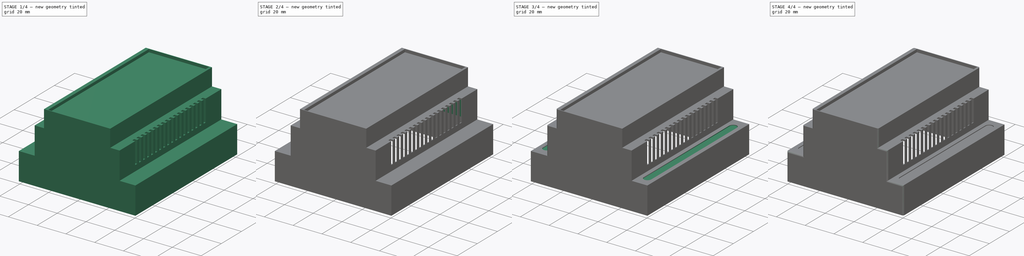
[diagram: build sequence overview — one tinted view per stage of 4, left to right]
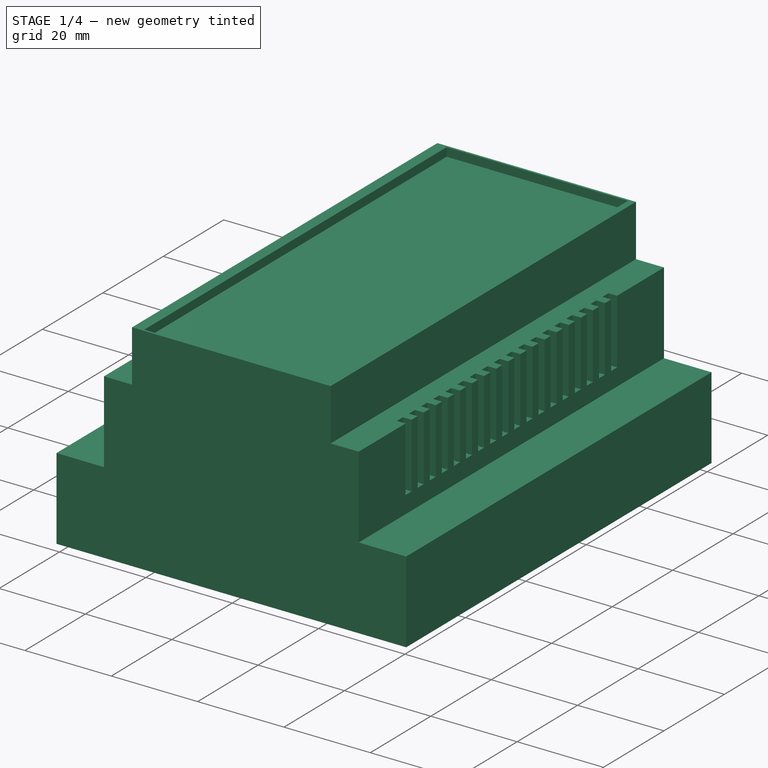
[diagram: stage 1 of 4 — iso view after this stage's code; geometry added in this stage tinted green]
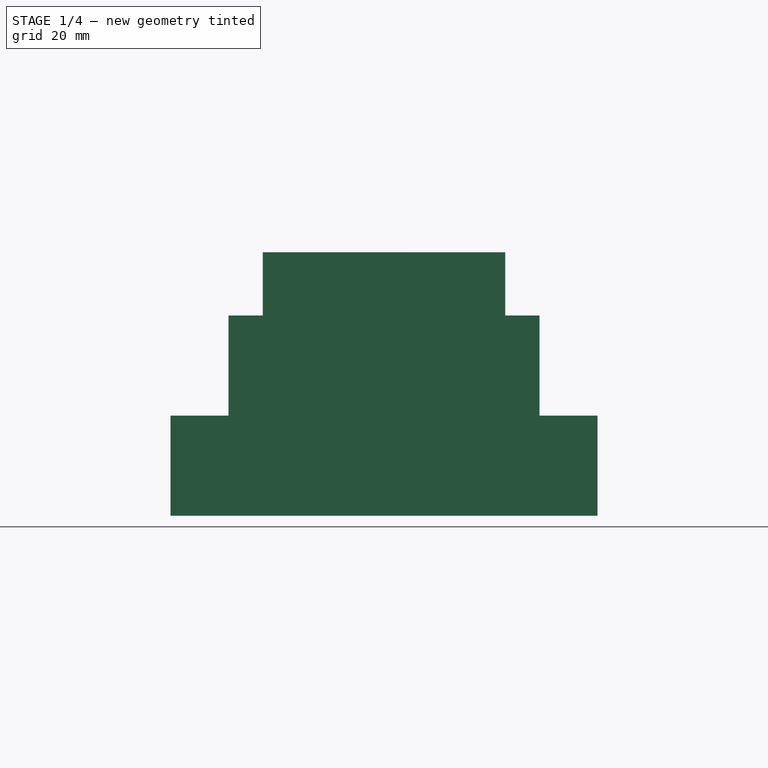
[diagram: stage 1 of 4 — front view after this stage's code; geometry added in this stage tinted green]
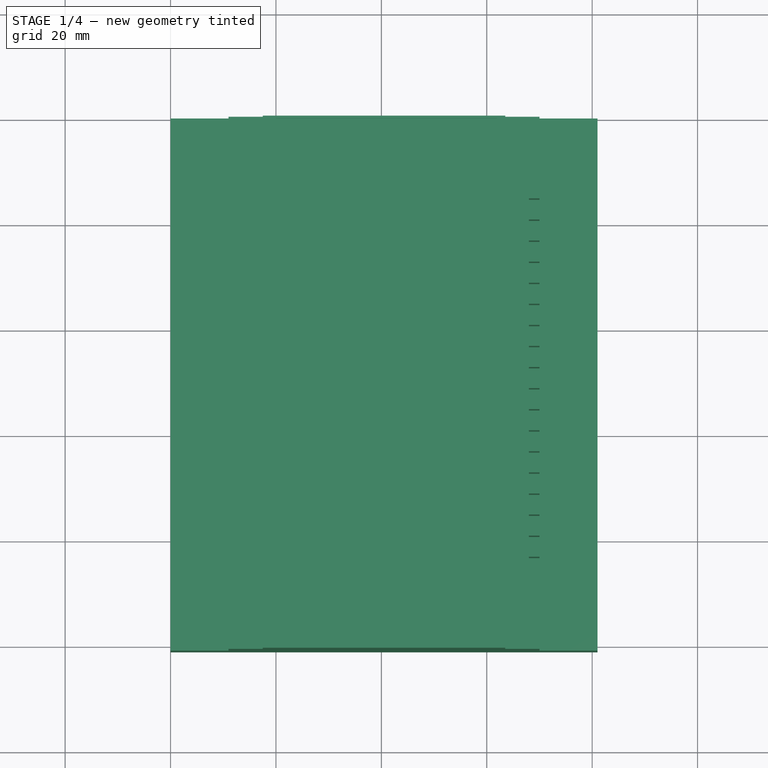
[diagram: stage 1 of 4 — top view after this stage's code; geometry added in this stage tinted green]
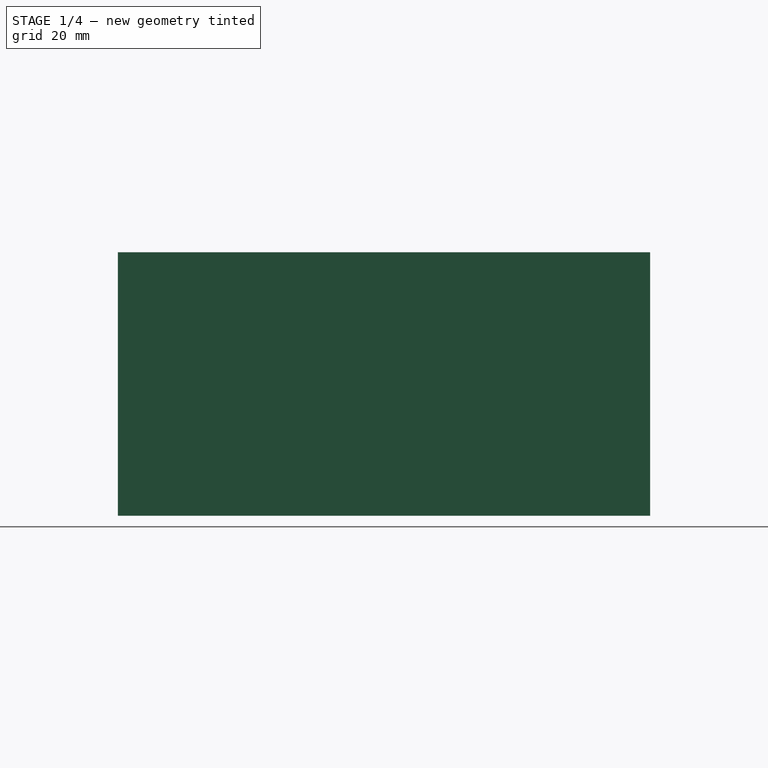
[diagram: stage 1 of 4 — right view after this stage's code; geometry added in this stage tinted green]
FCSTD DOCUMENT  (FreeCAD 1.0R39109 (Git))
Label: parte de arriba
License: All rights reserved
LicenseURL: https://en.wikipedia.org/wiki/All_rights_reserved
objects: Sketcher::SketchObject×9, PartDesign::Pocket×7, PartDesign::Fillet×6, PartDesign::Pad×1, PartDesign::Body×1
note: 61 computed .brp shape members not serialized (recipe doc carries the construction recipe); baked Part::Feature solids carry a one-line shape summary decoded from their .brp

FEATURE [Sketcher::SketchObject] Sketch
  ArcFitTolerance = 1e-06
  AttachmentSupport = -> [XZ_Plane]
  FullyConstrained = true
  MakeInternals = false
  MapMode = 5
  Placement = pos=(0,0,0) rot=(1,0,0;1.5708rad)
  sketch-geometry (12):
    g0: LineSegment StartX=0 StartY=0 StartZ=0 EndX=0 EndY=19 EndZ=0
    g1: LineSegment StartX=0 StartY=19 StartZ=0 EndX=11 EndY=19 EndZ=0
    g2: LineSegment StartX=11 StartY=19 StartZ=0 EndX=11 EndY=38 EndZ=0
    g3: LineSegment StartX=11 StartY=38 StartZ=0 EndX=17.5 EndY=38 EndZ=0
    g4: LineSegment StartX=17.5 StartY=38 StartZ=0 EndX=17.5 EndY=50 EndZ=0
    g5: LineSegment StartX=17.5 StartY=50 StartZ=0 EndX=63.5 EndY=50 EndZ=0
    g6: LineSegment StartX=63.5 StartY=50 StartZ=0 EndX=63.5 EndY=38 EndZ=0
    g7: LineSegment StartX=63.5 StartY=38 StartZ=0 EndX=70 EndY=38 EndZ=0
    g8: LineSegment StartX=70 StartY=38 StartZ=0 EndX=70 EndY=19 EndZ=0
    g9: LineSegment StartX=70 StartY=19 StartZ=0 EndX=81 EndY=19 EndZ=0
    g10: LineSegment StartX=81 StartY=19 StartZ=0 EndX=81 EndY=0 EndZ=0
    g11: LineSegment StartX=0 StartY=0 StartZ=0 EndX=81 EndY=0 EndZ=0
  constraints (36):
    c: Coincident(g0,g-1)
    c: PointOnObject(g0,g-2)
    c: Coincident(g1,g0)
    c: Horizontal(g1)
    c: Coincident(g2,g1)
    c: Vertical(g2)
    c: Coincident(g3,g2)
    c: Horizontal(g3)
    c: Coincident(g4,g3)
    c: Vertical(g4)
    c: Coincident(g5,g4)
    c: Horizontal(g5)
    c: Coincident(g6,g5)
    c: Vertical(g6)
    c: Coincident(g7,g6)
    c: Horizontal(g7)
    c: Coincident(g8,g7)
    c: Vertical(g8)
    c: Coincident(g9,g8)
    c: Horizontal(g9)
    c: PointOnObject(g10,g-1)
    c: Vertical(g10)
    c: Coincident(g11,g0)
    c: Coincident(g11,g10)
    c: Equal(g10,g0)
    c: Equal(g8,g2)
    c: Equal(g4,g6)
    c: DistanceX(g11,g11) = 81
    c: DistanceY(g4,g4) = 12
    c: DistanceY(g2,g2) = 19
    c: DistanceY(g0,g4) = 50
    c: DistanceX(g2,g7) = 59
    c: DistanceX(g4,g5) = 46
    c: Equal(g1,g9)
    c: Equal(g7,g3)
    c: Distance(g0,g9) = 81
FEATURE [PartDesign::Pad] Pad
  Direction = (0,-1,2e-16)
  Length = 101
  Length2 = 10
  Placement = pos=(0,0,0) rot=(1,0,0;1.5708rad)
  Profile = -> Sketch
  ReferenceAxis = -> Sketch [N_Axis]
  Refine = true
  Suppressed = false
  Type = 0
FEATURE [Sketcher::SketchObject] Sketch001
  ArcFitTolerance = 1e-06
  AttachmentSupport = -> [Pad]
  ExternalGeometry = -> [Pad]
  FullyConstrained = true
  MakeInternals = false
  MapMode = 5
  Placement = pos=(0,2.2e-14,50) rot=(0,0,1;3.14159rad)
  sketch-geometry (4):
    g0: LineSegment StartX=-62 StartY=100.5 StartZ=0 EndX=-62 EndY=0.5 EndZ=0
    g1: LineSegment StartX=-62 StartY=0.5 StartZ=0 EndX=-20 EndY=0.5 EndZ=0
    g2: LineSegment StartX=-20 StartY=0.5 StartZ=0 EndX=-20 EndY=100.5 EndZ=0
    g3: LineSegment StartX=-20 StartY=100.5 StartZ=0 EndX=-62 EndY=100.5 EndZ=0
  constraints (12):
    c: Coincident(g0,g1)
    c: Coincident(g1,g2)
    c: Coincident(g2,g3)
    c: Coincident(g3,g0)
    c: Vertical(g0)
    c: Vertical(g2)
    c: Horizontal(g1)
    c: Horizontal(g3)
    c: DistanceX(g3,g3) = 42
    c: Distance(g-5,g0) = 1.5
    c: DistanceY(g2,g2) = 100
    c: Distance(g-6,g3) = 0.5
FEATURE [PartDesign::Pocket] Pocket
  BaseFeature = -> Pad
  Direction = (0,0,-1)
  Length = 2
  Length2 = 5
  Placement = pos=(0,0,0) rot=(1,0,0;1.5708rad)
  Profile = -> Sketch001
  ReferenceAxis = -> Sketch001 [N_Axis]
  Refine = true
  Suppressed = false
  Type = 0
FEATURE [Sketcher::SketchObject] Sketch002
  ArcFitTolerance = 1e-06
  AttachmentSupport = -> [Pocket]
  ExternalGeometry = -> [Pocket]
  FullyConstrained = true
  MakeInternals = false
  MapMode = 5
  Placement = pos=(70,0,0) rot=(0.707107,0,0.707107;3.14159rad)
  sketch-geometry (72):
    g0: LineSegment StartX=38 StartY=83.5 StartZ=0 EndX=38 EndY=85.5 EndZ=0
    g1: LineSegment StartX=38 StartY=85.5 StartZ=0 EndX=23 EndY=85.5 EndZ=0
    g2: LineSegment StartX=23 StartY=85.5 StartZ=0 EndX=23 EndY=83.5 EndZ=0
    g3: LineSegment StartX=23 StartY=83.5 StartZ=0 EndX=38 EndY=83.5 EndZ=0
    g4: LineSegment StartX=38 StartY=81.5 StartZ=0 EndX=23 EndY=81.5 EndZ=0
    g5: LineSegment StartX=23 StartY=81.5 StartZ=0 EndX=23 EndY=79.5 EndZ=0
    g6: LineSegment StartX=23 StartY=79.5 StartZ=0 EndX=38 EndY=79.5 EndZ=0
    g7: LineSegment StartX=38 StartY=79.5 StartZ=0 EndX=38 EndY=81.5 EndZ=0
    g8: LineSegment StartX=38 StartY=15.5 StartZ=0 EndX=38 EndY=17.5 EndZ=0
    g9: LineSegment StartX=38 StartY=17.5 StartZ=0 EndX=23 EndY=17.5 EndZ=0
    g10: LineSegment StartX=23 StartY=17.5 StartZ=0 EndX=23 EndY=15.5 EndZ=0
    g11: LineSegment StartX=23 StartY=15.5 StartZ=0 EndX=38 EndY=15.5 EndZ=0
    g12: LineSegment StartX=38 StartY=19.5 StartZ=0 EndX=38 EndY=21.5 EndZ=0
    g13: LineSegment StartX=38 StartY=21.5 StartZ=0 EndX=23 EndY=21.5 EndZ=0
    g14: LineSegment StartX=23 StartY=21.5 StartZ=0 EndX=23 EndY=19.5 EndZ=0
    g15: LineSegment StartX=23 StartY=19.5 StartZ=0 EndX=38 EndY=19.5 EndZ=0
    g16: LineSegment StartX=23 StartY=29.5 StartZ=0 EndX=23 EndY=27.5 EndZ=0
    g17: LineSegment StartX=23 StartY=27.5 StartZ=0 EndX=38 EndY=27.5 EndZ=0
    g18: LineSegment StartX=38 StartY=27.5 StartZ=0 EndX=38 EndY=29.5 EndZ=0
    g19: LineSegment StartX=38 StartY=29.5 StartZ=0 EndX=23 EndY=29.5 EndZ=0
    g20: LineSegment StartX=23 StartY=33.5 StartZ=0 EndX=23 EndY=31.5 EndZ=0
    g21: LineSegment StartX=23 StartY=31.5 StartZ=0 EndX=38 EndY=31.5 EndZ=0
    g22: LineSegment StartX=38 StartY=31.5 StartZ=0 EndX=38 EndY=33.5 EndZ=0
    g23: LineSegment StartX=38 StartY=33.5 StartZ=0 EndX=23 EndY=33.5 EndZ=0
    g24: LineSegment StartX=23 StartY=37.5 StartZ=0 EndX=23 EndY=35.5 EndZ=0
    g25: LineSegment StartX=23 StartY=35.5 StartZ=0 EndX=38 EndY=35.5 EndZ=0
    g26: LineSegment StartX=38 StartY=35.5 StartZ=0 EndX=38 EndY=37.5 EndZ=0
    g27: LineSegment StartX=38 StartY=37.5 StartZ=0 EndX=23 EndY=37.5 EndZ=0
    g28: LineSegment StartX=38 StartY=25.5 StartZ=0 EndX=23 EndY=25.5 EndZ=0
    g29: LineSegment StartX=23 StartY=25.5 StartZ=0 EndX=23 EndY=23.5 EndZ=0
    g30: LineSegment StartX=23 StartY=23.5 StartZ=0 EndX=38 EndY=23.5 EndZ=0
    g31: LineSegment StartX=38 StartY=23.5 StartZ=0 EndX=38 EndY=25.5 EndZ=0
    g32: LineSegment StartX=38 StartY=39.5 StartZ=0 EndX=38 EndY=41.5 EndZ=0
    g33: LineSegment StartX=38 StartY=41.5 StartZ=0 EndX=23 EndY=41.5 EndZ=0
    g34: LineSegment StartX=23 StartY=41.5 StartZ=0 EndX=23 EndY=39.5 EndZ=0
    g35: LineSegment StartX=23 StartY=39.5 StartZ=0 EndX=38 EndY=39.5 EndZ=0
    g36: LineSegment StartX=38 StartY=43.5 StartZ=0 EndX=38 EndY=45.5 EndZ=0
    g37: LineSegment StartX=38 StartY=45.5 StartZ=0 EndX=23 EndY=45.5 EndZ=0
    g38: LineSegment StartX=23 StartY=45.5 StartZ=0 EndX=23 EndY=43.5 EndZ=0
    g39: LineSegment StartX=23 StartY=43.5 StartZ=0 EndX=38 EndY=43.5 EndZ=0
    g40: LineSegment StartX=38 StartY=77.5 StartZ=0 EndX=23 EndY=77.5 EndZ=0
    g41: LineSegment StartX=23 StartY=77.5 StartZ=0 EndX=23 EndY=75.5 EndZ=0
    g42: LineSegment StartX=23 StartY=75.5 StartZ=0 EndX=38 EndY=75.5 EndZ=0
    g43: LineSegment StartX=38 StartY=75.5 StartZ=0 EndX=38 EndY=77.5 EndZ=0
    g44: LineSegment StartX=38 StartY=73.5 StartZ=0 EndX=23 EndY=73.5 EndZ=0
    g45: LineSegment StartX=23 StartY=73.5 StartZ=0 EndX=23 EndY=71.5 EndZ=0
    g46: LineSegment StartX=23 StartY=71.5 StartZ=0 EndX=38 EndY=71.5 EndZ=0
    g47: LineSegment StartX=38 StartY=71.5 StartZ=0 EndX=38 EndY=73.5 EndZ=0
    g48: LineSegment StartX=38 StartY=67.5 StartZ=0 EndX=38 EndY=69.5 EndZ=0
    g49: LineSegment StartX=38 StartY=69.5 StartZ=0 EndX=23 EndY=69.5 EndZ=0
    g50: LineSegment StartX=23 StartY=69.5 StartZ=0 EndX=23 EndY=67.5 EndZ=0
    g51: LineSegment StartX=23 StartY=67.5 StartZ=0 EndX=38 EndY=67.5 EndZ=0
    g52: LineSegment StartX=38 StartY=63.5 StartZ=0 EndX=38 EndY=65.5 EndZ=0
    g53: LineSegment StartX=38 StartY=65.5 StartZ=0 EndX=23 EndY=65.5 EndZ=0
    g54: LineSegment StartX=23 StartY=65.5 StartZ=0 EndX=23 EndY=63.5 EndZ=0
    g55: LineSegment StartX=23 StartY=63.5 StartZ=0 EndX=38 EndY=63.5 EndZ=0
    g56: LineSegment StartX=38 StartY=59.5 StartZ=0 EndX=38 EndY=61.5 EndZ=0
    g57: LineSegment StartX=38 StartY=61.5 StartZ=0 EndX=23 EndY=61.5 EndZ=0
    g58: LineSegment StartX=23 StartY=61.5 StartZ=0 EndX=23 EndY=59.5 EndZ=0
    g59: LineSegment StartX=23 StartY=59.5 StartZ=0 EndX=38 EndY=59.5 EndZ=0
    g60: LineSegment StartX=38 StartY=57.5 StartZ=0 EndX=23 EndY=57.5 EndZ=0
    g61: LineSegment StartX=23 StartY=57.5 StartZ=0 EndX=23 EndY=55.5 EndZ=0
    g62: LineSegment StartX=23 StartY=55.5 StartZ=0 EndX=38 EndY=55.5 EndZ=0
    g63: LineSegment StartX=38 StartY=55.5 StartZ=0 EndX=38 EndY=57.5 EndZ=0
    g64: LineSegment StartX=38 StartY=47.5 StartZ=0 EndX=38 EndY=49.5 EndZ=0
    g65: LineSegment StartX=38 StartY=49.5 StartZ=0 EndX=23 EndY=49.5 EndZ=0
    g66: LineSegment StartX=23 StartY=49.5 StartZ=0 EndX=23 EndY=47.5 EndZ=0
    g67: LineSegment StartX=23 StartY=47.5 StartZ=0 EndX=38 EndY=47.5 EndZ=0
    g68: LineSegment StartX=38 StartY=53.5 StartZ=0 EndX=23 EndY=53.5 EndZ=0
    g69: LineSegment StartX=23 StartY=53.5 StartZ=0 EndX=23 EndY=51.5 EndZ=0
    g70: LineSegment StartX=23 StartY=51.5 StartZ=0 EndX=38 EndY=51.5 EndZ=0
    g71: LineSegment StartX=38 StartY=51.5 StartZ=0 EndX=38 EndY=53.5 EndZ=0
  constraints (216):
    c: Coincident(g0,g1)
    c: Coincident(g1,g2)
    c: Coincident(g2,g3)
    c: Coincident(g3,g0)
    c: Vertical(g0)
    c: Vertical(g2)
    c: Horizontal(g1)
    c: Horizontal(g3)
    c: PointOnObject(g0,g-4)
    c: DistanceX(g1,g1) = 15
    c: DistanceY(g2,g2) = 2
    c: Distance(g-3,g1) = 15.5
    c: Coincident(g4,g5)
    c: Coincident(g5,g6)
    c: Coincident(g6,g7)
    c: Coincident(g7,g4)
    c: Horizontal(g4)
    c: Horizontal(g6)
    c: Vertical(g5)
    c: Vertical(g7)
    c: PointOnObject(g4,g-4)
    c: DistanceY(g5,g5) = 2
    c: Distance(g4,g3) = 2
    c: DistanceX(g6,g6) = 15
    c: Coincident(g8,g9)
    c: Coincident(g9,g10)
    c: Coincident(g10,g11)
    c: Coincident(g11,g8)
    c: Vertical(g8)
    c: Vertical(g10)
    c: Horizontal(g9)
    c: Horizontal(g11)
    c: PointOnObject(g8,g-4)
    c: DistanceY(g10,g10) = 2
    c: DistanceX(g11,g11) = 15
    c: Distance(g-6,g11) = 15.5
    c: Coincident(g12,g13)
    c: Coincident(g13,g14)
    c: Coincident(g14,g15)
    c: Coincident(g15,g12)
    c: Vertical(g12)
    c: Vertical(g14)
    c: Horizontal(g13)
    c: Horizontal(g15)
    c: PointOnObject(g12,g-4)
    c: Distance(g9,g15) = 2
    c: DistanceY(g14,g14) = 2
    c: DistanceX(g13,g13) = 15
    c: Coincident(g16,g17)
    c: Coincident(g17,g18)
    c: Coincident(g18,g19)
    c: Coincident(g19,g16)
    c: Vertical(g16)
    c: Vertical(g18)
    c: Horizontal(g17)
    c: Horizontal(g19)
    c: PointOnObject(g17,g-4)
    c: Coincident(g20,g21)
    c: Coincident(g21,g22)
    c: Coincident(g22,g23)
    c: Coincident(g23,g20)
    c: Vertical(g20)
    c: Vertical(g22)
    c: Horizontal(g21)
    c: Horizontal(g23)
    c: PointOnObject(g21,g-4)
    c: Coincident(g24,g25)
    c: Coincident(g25,g26)
    c: Coincident(g26,g27)
    c: Coincident(g27,g24)
    c: Vertical(g24)
    c: Vertical(g26)
    c: Horizontal(g25)
    c: Horizontal(g27)
    c: PointOnObject(g25,g-4)
    c: Equal(g20,g24)
    c: DistanceY(g24,g24) = 2
    c: DistanceX(g25,g25) = 15
    c: Equal(g25,g23)
    c: Equal(g19,g21)
    c: Distance(g21,g19) = 2
    c: Distance(g23,g25) = 2
    c: Coincident(g28,g29)
    c: Coincident(g29,g30)
    c: Coincident(g30,g31)
    c: Coincident(g31,g28)
    c: Horizontal(g28)
    c: Horizontal(g30)
    c: Vertical(g29)
    c: Vertical(g31)
    c: PointOnObject(g28,g-4)
    c: DistanceX(g28,g28) = 15
    c: DistanceY(g29,g29) = 2
    c: Distance(g30,g13) = 2
    c: DistanceY(g16,g16) = 2
    c: Distance(g17,g28) = 2
    c: Coincident(g32,g33)
    c: Coincident(g33,g34)
    c: Coincident(g34,g35)
    c: Coincident(g35,g32)
    c: Vertical(g32)
    c: Vertical(g34)
    c: Horizontal(g33)
    c: Horizontal(g35)
    c: PointOnObject(g32,g-4)
    c: DistanceY(g34,g34) = 2
    c: Distance(g27,g35) = 2
    c: DistanceX(g33,g33) = 15
    c: Coincident(g36,g37)
    c: Coincident(g37,g38)
    c: Coincident(g38,g39)
    c: Coincident(g39,g36)
    c: Vertical(g36)
    c: Vertical(g38)
    c: Horizontal(g37)
    c: Horizontal(g39)
    c: PointOnObject(g36,g-4)
    c: DistanceY(g38,g38) = 2
    c: DistanceX(g37,g37) = 15
    c: Distance(g33,g39) = 2
    c: Coincident(g40,g41)
    c: Coincident(g41,g42)
    c: Coincident(g42,g43)
    c: Coincident(g43,g40)
    c: Horizontal(g40)
    c: Horizontal(g42)
    c: Vertical(g41)
    c: Vertical(g43)
    c: PointOnObject(g40,g-4)
    c: DistanceX(g42,g42) = 15
    c: Distance(g6,g40) = 2
    c: DistanceY(g41,g41) = 2
    c: Coincident(g44,g45)
    c: Coincident(g45,g46)
    c: Coincident(g46,g47)
    c: Coincident(g47,g44)
    c: Horizontal(g44)
    c: Horizontal(g46)
    c: Vertical(g45)
    c: Vertical(g47)
    c: PointOnObject(g44,g-4)
    c: DistanceX(g46,g46) = 15
    c: Distance(g42,g44) = 2
    c: DistanceY(g45,g45) = 2
    c: Coincident(g48,g49)
    c: Coincident(g49,g50)
    c: Coincident(g50,g51)
    c: Coincident(g51,g48)
    c: Vertical(g48)
    c: Vertical(g50)
    c: Horizontal(g49)
    c: Horizontal(g51)
    c: PointOnObject(g48,g-4)
    c: DistanceY(g50,g50) = 2
    c: Distance(g46,g49) = 2
    c: DistanceX(g51,g51) = 15
    c: Coincident(g52,g53)
    c: Coincident(g53,g54)
    c: Coincident(g54,g55)
    c: Coincident(g55,g52)
    c: Vertical(g52)
    c: Vertical(g54)
    c: Horizontal(g53)
    c: Horizontal(g55)
    c: PointOnObject(g52,g-4)
    c: DistanceX(g55,g55) = 15
    c: Distance(g51,g53) = 2
    c: DistanceY(g54,g54) = 2
    c: Coincident(g56,g57)
    c: Coincident(g57,g58)
    c: Coincident(g58,g59)
    c: Coincident(g59,g56)
    c: Vertical(g56)
    c: Vertical(g58)
    c: Horizontal(g57)
    c: Horizontal(g59)
    c: PointOnObject(g56,g-4)
    c: DistanceY(g58,g58) = 2
    c: DistanceX(g59,g59) = 15
    c: Distance(g57,g55) = 2
    c: Coincident(g60,g61)
    c: Coincident(g61,g62)
    c: Coincident(g62,g63)
    c: Coincident(g63,g60)
    c: Horizontal(g60)
    c: Horizontal(g62)
    c: Vertical(g61)
    c: Vertical(g63)
    c: PointOnObject(g60,g-4)
    c: DistanceY(g61,g61) = 2
    c: Distance(g60,g59) = 2
    c: DistanceX(g62,g62) = 15
    c: Coincident(g64,g65)
    c: Coincident(g65,g66)
    c: Coincident(g66,g67)
    c: Coincident(g67,g64)
    c: Vertical(g64)
    c: Vertical(g66)
    c: Horizontal(g65)
    c: Horizontal(g67)
    c: PointOnObject(g64,g-4)
    c: DistanceY(g66,g66) = 2
    c: Distance(g37,g67) = 2
    c: DistanceX(g65,g65) = 15
    c: Coincident(g68,g69)
    c: Coincident(g69,g70)
    c: Coincident(g70,g71)
    c: Coincident(g71,g68)
    c: Horizontal(g68)
    c: Horizontal(g70)
    c: Vertical(g69)
    c: Vertical(g71)
    c: PointOnObject(g68,g-4)
    c: Distance(g68,g62) = 2
    c: DistanceY(g69,g69) = 2
    c: DistanceX(g70,g70) = 15
FEATURE [PartDesign::Pocket] Pocket001
  BaseFeature = -> Pocket
  Direction = (-1,0,2e-16)
  Length = 2
  Length2 = 5
  Placement = pos=(0,0,0) rot=(1,0,0;1.5708rad)
  Profile = -> Sketch002
  ReferenceAxis = -> Sketch002 [N_Axis]
  Refine = true
  Suppressed = false
  Type = 0
FEATURE [Sketcher::SketchObject] Sketch003
  ArcFitTolerance = 1e-06
  AttachmentSupport = -> [Pocket001]
  ExternalGeometry = -> [Pocket001]
  FullyConstrained = true
  MakeInternals = false
  MapMode = 5
  Placement = pos=(0,0,0) rot=(1,0,0;3.14159rad)
  sketch-geometry (5):
    g0: LineSegment StartX=1 StartY=0.5 StartZ=0 EndX=80 EndY=0.5 EndZ=0
    g1: LineSegment StartX=80 StartY=0.5 StartZ=0 EndX=80 EndY=100.5 EndZ=0
    g2: LineSegment StartX=80 StartY=100.5 StartZ=0 EndX=1 EndY=100.5 EndZ=0
    g3: LineSegment StartX=1 StartY=100.5 StartZ=0 EndX=1 EndY=0.5 EndZ=0
    g4: GeomPoint [constr] X=40.5 Y=50.5 Z=0
  constraints (13):
    c: Coincident(g0,g1)
    c: Coincident(g1,g2)
    c: Coincident(g2,g3)
    c: Coincident(g3,g0)
    c: Horizontal(g0)
    c: Horizontal(g2)
    c: Vertical(g1)
    c: Vertical(g3)
    c: Symmetric(g2,g0,g4)
    c: DistanceX(g2,g2) = 79
    c: DistanceY(g1,g1) = 100
    c: Distance(g-1,g0) = 0.5
    c: Distance(g-4,g1) = 1
FEATURE [PartDesign::Pocket] Pocket002
  BaseFeature = -> Pocket001
  Direction = (0,0,1)
  Length = 18
  Length2 = 5
  Placement = pos=(0,0,0) rot=(1,0,0;1.5708rad)
  Profile = -> Sketch003
  ReferenceAxis = -> Sketch003 [N_Axis]
  Refine = true
  Suppressed = false
  Type = 0
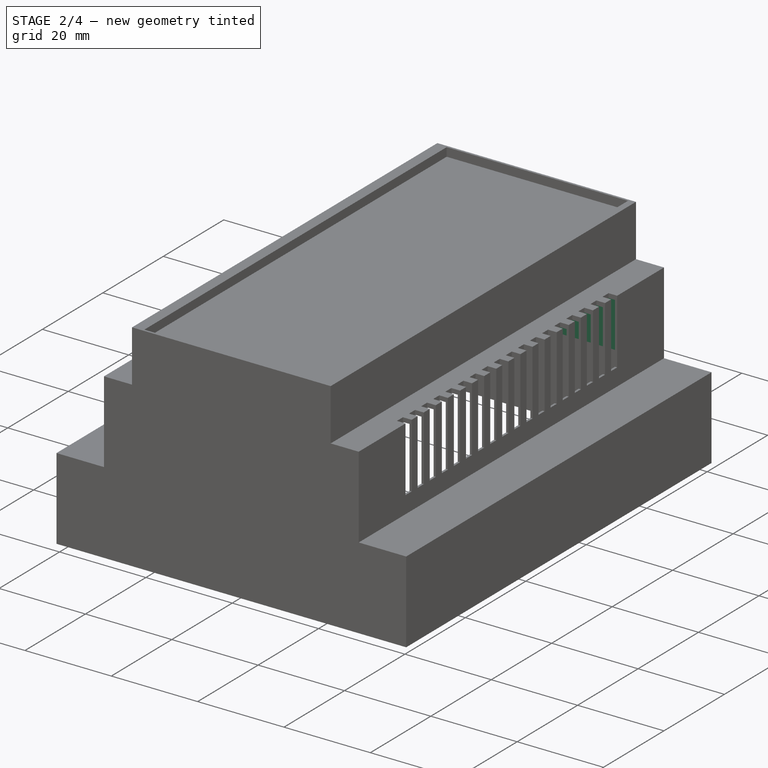
[diagram: stage 2 of 4 — iso view after this stage's code; geometry added in this stage tinted green]
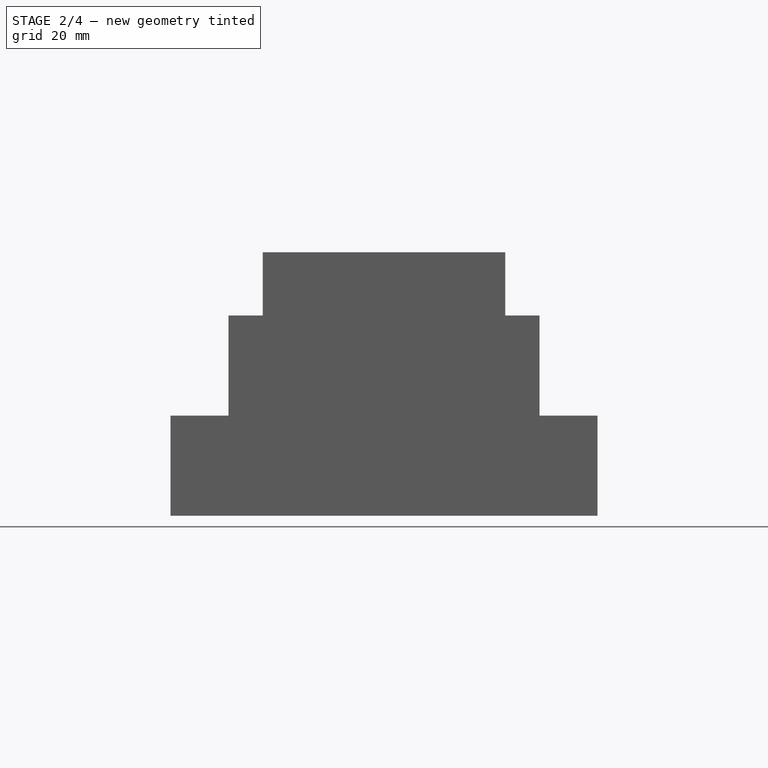
[diagram: stage 2 of 4 — front view after this stage's code; geometry added in this stage tinted green]
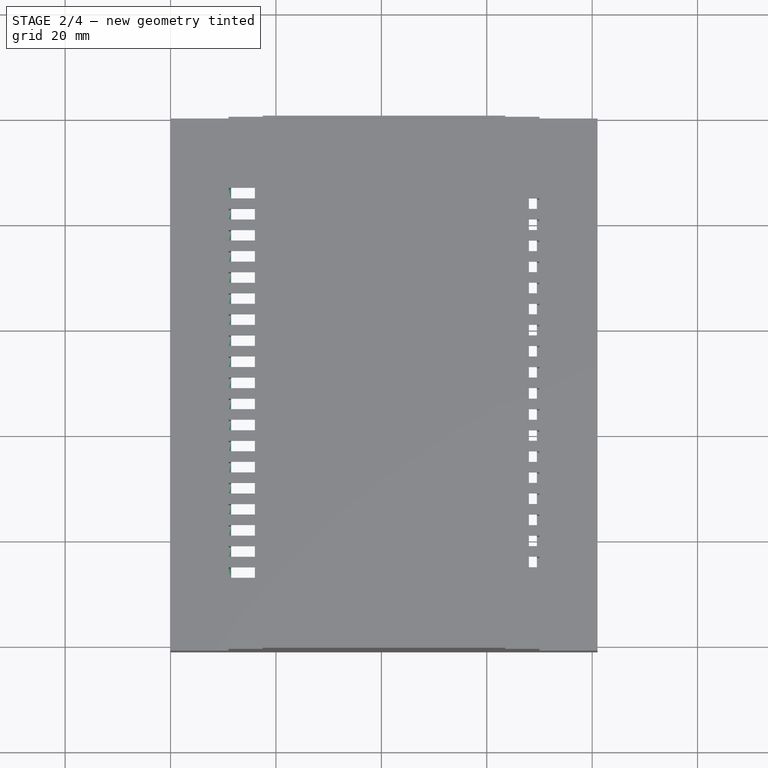
[diagram: stage 2 of 4 — top view after this stage's code; geometry added in this stage tinted green]
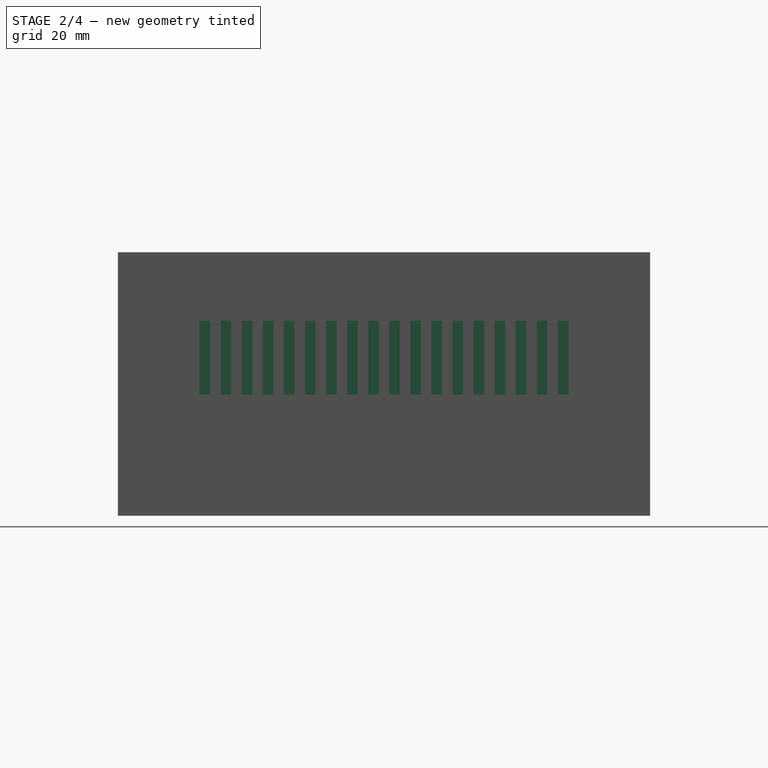
[diagram: stage 2 of 4 — right view after this stage's code; geometry added in this stage tinted green]
FEATURE [Sketcher::SketchObject] Sketch004
  ArcFitTolerance = 1e-06
  AttachmentSupport = -> [Pocket002]
  ExternalGeometry = -> [Pocket002]
  FullyConstrained = true
  MakeInternals = false
  MapMode = 5
  Placement = pos=(0,0,18) rot=(1,0,0;3.14159rad)
  sketch-geometry (5):
    g0: LineSegment StartX=11.5 StartY=0.5 StartZ=0 EndX=69.5 EndY=0.5 EndZ=0
    g1: LineSegment StartX=69.5 StartY=0.5 StartZ=0 EndX=69.5 EndY=100.5 EndZ=0
    g2: LineSegment StartX=69.5 StartY=100.5 StartZ=0 EndX=11.5 EndY=100.5 EndZ=0
    g3: LineSegment StartX=11.5 StartY=100.5 StartZ=0 EndX=11.5 EndY=0.5 EndZ=0
    g4: GeomPoint [constr] X=40.5 Y=50.5 Z=0
  constraints (12):
    c: Coincident(g0,g1)
    c: Coincident(g1,g2)
    c: Coincident(g2,g3)
    c: Coincident(g3,g0)
    c: Horizontal(g0)
    c: Vertical(g1)
    c: Vertical(g3)
    c: Symmetric(g2,g0,g4)
    c: DistanceX(g2,g2) = 58
    c: Distance(g-2,g3) = 11.5
    c: DistanceY(g1,g1) = 100
    c: Tangent(g2,g-3)
FEATURE [PartDesign::Pocket] Pocket003
  BaseFeature = -> Pocket002
  Direction = (0,0,1)
  Length = 19
  Length2 = 5
  Placement = pos=(0,0,0) rot=(1,0,0;1.5708rad)
  Profile = -> Sketch004
  ReferenceAxis = -> Sketch004 [N_Axis]
  Refine = true
  Suppressed = false
  Type = 0
FEATURE [Sketcher::SketchObject] Sketch005
  ArcFitTolerance = 1e-06
  AttachmentSupport = -> [Pocket003]
  FullyConstrained = true
  MakeInternals = false
  MapMode = 5
  Placement = pos=(0,8.4e-15,19) rot=(0,0,1;3.14159rad)
FEATURE [Sketcher::SketchObject] Sketch006
  ArcFitTolerance = 1e-06
  AttachmentSupport = -> [Pocket003]
  ExternalGeometry = -> [Pocket003]
  FullyConstrained = true
  MakeInternals = false
  MapMode = 5
  Placement = pos=(0,0,37) rot=(1,0,0;3.14159rad)
  sketch-geometry (4):
    g0: LineSegment StartX=18 StartY=100.5 StartZ=0 EndX=18 EndY=0.5 EndZ=0
    g1: LineSegment StartX=18 StartY=0.5 StartZ=0 EndX=63 EndY=0.5 EndZ=0
    g2: LineSegment StartX=63 StartY=0.5 StartZ=0 EndX=63 EndY=100.5 EndZ=0
    g3: LineSegment StartX=63 StartY=100.5 StartZ=0 EndX=18 EndY=100.5 EndZ=0
  constraints (11):
    c: Coincident(g0,g1)
    c: Coincident(g1,g2)
    c: Coincident(g2,g3)
    c: Coincident(g3,g0)
    c: Vertical(g0)
    c: Vertical(g2)
    c: Horizontal(g1)
    c: DistanceX(g3,g3) = 45
    c: DistanceY(g2,g2) = 100
    c: Tangent(g3,g-4)
    c: Distance(g-2,g0) = 18
FEATURE [PartDesign::Pocket] Pocket004
  BaseFeature = -> Pocket003
  Direction = (0,0,1)
  Length = 10
  Length2 = 5
  Placement = pos=(0,0,0) rot=(1,0,0;1.5708rad)
  Profile = -> Sketch006
  ReferenceAxis = -> Sketch006 [N_Axis]
  Refine = true
  Suppressed = false
  Type = 0
FEATURE [Sketcher::SketchObject] Sketch007
  ArcFitTolerance = 1e-06
  AttachmentSupport = -> [Pocket001]
  ExternalGeometry = -> [Pocket001]
  FullyConstrained = false
  MakeInternals = false
  MapMode = 5
  Placement = pos=(11,0,0) rot=(0.707107,0,-0.707107;3.14159rad)
  sketch-geometry (76):
    g0: LineSegment StartX=-38 StartY=15.5 StartZ=0 EndX=-23 EndY=15.5 EndZ=0
    g1: LineSegment StartX=-23 StartY=15.5 StartZ=0 EndX=-23 EndY=13.5 EndZ=0
    g2: LineSegment StartX=-23 StartY=13.5 StartZ=0 EndX=-38 EndY=13.5 EndZ=0
    g3: LineSegment StartX=-38 StartY=13.5 StartZ=0 EndX=-38 EndY=15.5 EndZ=0
    g4: LineSegment StartX=-38 StartY=19.5 StartZ=0 EndX=-38 EndY=17.5 EndZ=0
    g5: LineSegment StartX=-38 StartY=17.5 StartZ=0 EndX=-23 EndY=17.5 EndZ=0
    g6: LineSegment StartX=-23 StartY=17.5 StartZ=0 EndX=-23 EndY=19.5 EndZ=0
    g7: LineSegment StartX=-23 StartY=19.5 StartZ=0 EndX=-38 EndY=19.5 EndZ=0
    g8: LineSegment StartX=-38 StartY=23.5 StartZ=0 EndX=-38 EndY=21.5 EndZ=0
    g9: LineSegment StartX=-38 StartY=21.5 StartZ=0 EndX=-23 EndY=21.5 EndZ=0
    g10: LineSegment StartX=-23 StartY=21.5 StartZ=0 EndX=-23 EndY=23.5 EndZ=0
    g11: LineSegment StartX=-23 StartY=23.5 StartZ=0 EndX=-38 EndY=23.5 EndZ=0
    g12: LineSegment StartX=-38 StartY=27.5 StartZ=0 EndX=-38 EndY=25.5 EndZ=0
    g13: LineSegment StartX=-38 StartY=25.5 StartZ=0 EndX=-23 EndY=25.5 EndZ=0
    g14: LineSegment StartX=-23 StartY=25.5 StartZ=0 EndX=-23 EndY=27.5 EndZ=0
    g15: LineSegment StartX=-23 StartY=27.5 StartZ=0 EndX=-38 EndY=27.5 EndZ=0
    g16: LineSegment StartX=-38 StartY=31.5 StartZ=0 EndX=-38 EndY=29.5 EndZ=0
    g17: LineSegment StartX=-38 StartY=29.5 StartZ=0 EndX=-23 EndY=29.5 EndZ=0
    g18: LineSegment StartX=-23 StartY=29.5 StartZ=0 EndX=-23 EndY=31.5 EndZ=0
    g19: LineSegment StartX=-23 StartY=31.5 StartZ=0 EndX=-38 EndY=31.5 EndZ=0
    g20: LineSegment StartX=-38 StartY=35.5 StartZ=0 EndX=-38 EndY=33.5 EndZ=0
    g21: LineSegment StartX=-38 StartY=33.5 StartZ=0 EndX=-23 EndY=33.5 EndZ=0
    g22: LineSegment StartX=-23 StartY=33.5 StartZ=0 EndX=-23 EndY=35.5 EndZ=0
    g23: LineSegment StartX=-23 StartY=35.5 StartZ=0 EndX=-38 EndY=35.5 EndZ=0
    g24: LineSegment StartX=-38 StartY=39.5 StartZ=0 EndX=-38 EndY=37.5 EndZ=0
    g25: LineSegment StartX=-38 StartY=37.5 StartZ=0 EndX=-23 EndY=37.5 EndZ=0
    g26: LineSegment StartX=-23 StartY=37.5 StartZ=0 EndX=-23 EndY=39.5 EndZ=0
    g27: LineSegment StartX=-23 StartY=39.5 StartZ=0 EndX=-38 EndY=39.5 EndZ=0
    g28: LineSegment StartX=-38 StartY=43.5 StartZ=0 EndX=-38 EndY=41.5 EndZ=0
    g29: LineSegment StartX=-38 StartY=41.5 StartZ=0 EndX=-23 EndY=41.5 EndZ=0
    g30: LineSegment StartX=-23 StartY=41.5 StartZ=0 EndX=-23 EndY=43.5 EndZ=0
    g31: LineSegment StartX=-23 StartY=43.5 StartZ=0 EndX=-38 EndY=43.5 EndZ=0
    g32: LineSegment StartX=-38 StartY=45.5 StartZ=0 EndX=-23 EndY=45.5 EndZ=0
    g33: LineSegment StartX=-23 StartY=45.5 StartZ=0 EndX=-23 EndY=47.5 EndZ=0
    g34: LineSegment StartX=-23 StartY=47.5 StartZ=0 EndX=-38 EndY=47.5 EndZ=0
    g35: LineSegment StartX=-38 StartY=47.5 StartZ=0 EndX=-38 EndY=45.5 EndZ=0
    g36: LineSegment StartX=-38 StartY=85.5 StartZ=0 EndX=-38 EndY=87.5 EndZ=0
    g37: LineSegment StartX=-38 StartY=87.5 StartZ=0 EndX=-23 EndY=87.5 EndZ=0
    g38: LineSegment StartX=-23 StartY=87.5 StartZ=0 EndX=-23 EndY=85.5 EndZ=0
    g39: LineSegment StartX=-23 StartY=85.5 StartZ=0 EndX=-38 EndY=85.5 EndZ=0
    g40: LineSegment StartX=-38 StartY=83.5 StartZ=0 EndX=-38 EndY=81.5 EndZ=0
    g41: LineSegment StartX=-38 StartY=81.5 StartZ=0 EndX=-23 EndY=81.5 EndZ=0
    g42: LineSegment StartX=-23 StartY=81.5 StartZ=0 EndX=-23 EndY=83.5 EndZ=0
    g43: LineSegment StartX=-23 StartY=83.5 StartZ=0 EndX=-38 EndY=83.5 EndZ=0
    g44: LineSegment StartX=-38 StartY=79.5 StartZ=0 EndX=-38 EndY=77.5 EndZ=0
    g45: LineSegment StartX=-38 StartY=77.5 StartZ=0 EndX=-23 EndY=77.5 EndZ=0
    g46: LineSegment StartX=-23 StartY=77.5 StartZ=0 EndX=-23 EndY=79.5 EndZ=0
    g47: LineSegment StartX=-23 StartY=79.5 StartZ=0 EndX=-38 EndY=79.5 EndZ=0
    g48: LineSegment StartX=-38 StartY=75.5 StartZ=0 EndX=-38 EndY=73.5 EndZ=0
    g49: LineSegment StartX=-38 StartY=73.5 StartZ=0 EndX=-23 EndY=73.5 EndZ=0
    g50: LineSegment StartX=-23 StartY=73.5 StartZ=0 EndX=-23 EndY=75.5 EndZ=0
    g51: LineSegment StartX=-23 StartY=75.5 StartZ=0 EndX=-38 EndY=75.5 EndZ=0
    g52: LineSegment StartX=-38 StartY=71.5 StartZ=0 EndX=-38 EndY=69.5 EndZ=0
    g53: LineSegment StartX=-38 StartY=69.5 StartZ=0 EndX=-23 EndY=69.5 EndZ=0
    g54: LineSegment StartX=-23 StartY=69.5 StartZ=0 EndX=-23 EndY=71.5 EndZ=0
    g55: LineSegment StartX=-23 StartY=71.5 StartZ=0 EndX=-38 EndY=71.5 EndZ=0
    g56: LineSegment StartX=-38 StartY=67.5 StartZ=0 EndX=-38 EndY=65.5 EndZ=0
    g57: LineSegment StartX=-38 StartY=65.5 StartZ=0 EndX=-23 EndY=65.5 EndZ=0
    g58: LineSegment StartX=-23 StartY=65.5 StartZ=0 EndX=-23 EndY=67.5 EndZ=0
    g59: LineSegment StartX=-23 StartY=67.5 StartZ=0 EndX=-38 EndY=67.5 EndZ=0
    g60: LineSegment StartX=-38 StartY=63.5 StartZ=0 EndX=-38 EndY=61.5 EndZ=0
    g61: LineSegment StartX=-38 StartY=61.5 StartZ=0 EndX=-23 EndY=61.5 EndZ=0
    g62: LineSegment StartX=-23 StartY=61.5 StartZ=0 EndX=-23 EndY=63.5 EndZ=0
    g63: LineSegment StartX=-23 StartY=63.5 StartZ=0 EndX=-38 EndY=63.5 EndZ=0
    g64: LineSegment StartX=-38 StartY=59.5 StartZ=0 EndX=-38 EndY=57.5 EndZ=0
    g65: LineSegment StartX=-38 StartY=57.5 StartZ=0 EndX=-23 EndY=57.5 EndZ=0
    g66: LineSegment StartX=-23 StartY=57.5 StartZ=0 EndX=-23 EndY=59.5 EndZ=0
    g67: LineSegment StartX=-23 StartY=59.5 StartZ=0 EndX=-38 EndY=59.5 EndZ=0
    g68: LineSegment StartX=-38 StartY=55.5 StartZ=0 EndX=-38 EndY=53.5 EndZ=0
    g69: LineSegment StartX=-38 StartY=53.5 StartZ=0 EndX=-23 EndY=53.5 EndZ=0
    g70: LineSegment StartX=-23 StartY=53.5 StartZ=0 EndX=-23 EndY=55.5 EndZ=0
    g71: LineSegment StartX=-23 StartY=55.5 StartZ=0 EndX=-38 EndY=55.5 EndZ=0
    g72: LineSegment StartX=-23 StartY=51.5 StartZ=0 EndX=-38 EndY=51.5 EndZ=0
    g73: LineSegment StartX=-38 StartY=51.5 StartZ=0 EndX=-38 EndY=49.5 EndZ=0
    g74: LineSegment StartX=-38 StartY=49.5 StartZ=0 EndX=-23 EndY=49.5 EndZ=0
    g75: LineSegment StartX=-23 StartY=49.5 StartZ=0 EndX=-23 EndY=51.5 EndZ=0
  constraints (208):
    c: Coincident(g0,g1)
    c: Coincident(g1,g2)
    c: Coincident(g2,g3)
    c: Coincident(g3,g0)
    c: Horizontal(g0)
    c: Horizontal(g2)
    c: Vertical(g1)
    c: Vertical(g3)
    c: Distance(g-1,g0) = 15.5
    c: DistanceY(g1,g1) = 2
    c: DistanceX(g2,g2) = 15
    c: Coincident(g4,g5)
    c: Coincident(g5,g6)
    c: Coincident(g6,g7)
    c: Coincident(g7,g4)
    c: Vertical(g4)
    c: Vertical(g6)
    c: Horizontal(g5)
    c: Horizontal(g7)
    c: DistanceY(g6,g6) = 2
    c: DistanceX(g7,g7) = 15
    c: Distance(g0,g5) = 2
    c: Coincident(g8,g9)
    c: Coincident(g9,g10)
    c: Coincident(g10,g11)
    c: Coincident(g11,g8)
    c: Vertical(g8)
    c: Vertical(g10)
    c: Horizontal(g9)
    c: Horizontal(g11)
    c: DistanceX(g11,g11) = 15
    c: DistanceY(g10,g10) = 2
    c: Distance(g7,g9) = 2
    c: Coincident(g12,g13)
    c: Coincident(g13,g14)
    c: Coincident(g14,g15)
    c: Coincident(g15,g12)
    c: Vertical(g12)
    c: Vertical(g14)
    c: Horizontal(g13)
    c: Horizontal(g15)
    c: DistanceX(g15,g15) = 15
    c: Distance(g11,g13) = 2
    c: DistanceY(g14,g14) = 2
    c: Coincident(g16,g17)
    c: Coincident(g17,g18)
    c: Coincident(g18,g19)
    c: Coincident(g19,g16)
    c: Vertical(g16)
    c: Vertical(g18)
    c: Horizontal(g17)
    c: Horizontal(g19)
    c: DistanceX(g19,g19) = 15
    c: DistanceY(g18,g18) = 2
    c: Distance(g15,g17) = 2
    c: Coincident(g20,g21)
    c: Coincident(g21,g22)
    c: Coincident(g22,g23)
    c: Coincident(g23,g20)
    c: Vertical(g20)
    c: Vertical(g22)
    c: Horizontal(g21)
    c: Horizontal(g23)
    c: DistanceX(g23,g23) = 15
    c: DistanceY(g22,g22) = 2
    c: Distance(g19,g21) = 2
    c: Coincident(g24,g25)
    c: Coincident(g25,g26)
    c: Coincident(g26,g27)
    c: Coincident(g27,g24)
    c: Vertical(g24)
    c: Vertical(g26)
    c: Horizontal(g25)
    c: Horizontal(g27)
    c: DistanceX(g27,g27) = 15
    c: DistanceY(g26,g26) = 2
    c: Distance(g23,g25) = 2
    c: Coincident(g28,g29)
    c: Coincident(g29,g30)
    c: Coincident(g30,g31)
    c: Coincident(g31,g28)
    c: Vertical(g28)
    c: Vertical(g30)
    c: Horizontal(g29)
    c: Horizontal(g31)
    c: DistanceX(g31,g31) = 15
    c: DistanceY(g30,g30) = 2
    c: Distance(g27,g29) = 2
    c: Coincident(g32,g33)
    c: Coincident(g33,g34)
    c: Coincident(g34,g35)
    c: Coincident(g35,g32)
    c: Horizontal(g32)
    c: Horizontal(g34)
    c: Vertical(g33)
    c: Vertical(g35)
    c: DistanceX(g34,g34) = 15
    c: DistanceY(g33,g33) = 2
    c: Distance(g31,g32) = 2
    c: Coincident(g36,g37)
    c: Coincident(g37,g38)
    c: Coincident(g38,g39)
    c: Coincident(g39,g36)
    c: Vertical(g36)
    c: Vertical(g38)
    c: Horizontal(g37)
    c: Horizontal(g39)
    c: Distance(g39,g-4) = 15.5
    c: DistanceY(g38,g38) = 2
    c: DistanceX(g37,g37) = 15
    c: Coincident(g40,g41)
    c: Coincident(g41,g42)
    c: Coincident(g42,g43)
    c: Coincident(g43,g40)
    c: Vertical(g40)
    c: Vertical(g42)
    c: Horizontal(g41)
    c: Horizontal(g43)
    c: DistanceX(g41,g41) = 15
    c: DistanceY(g42,g42) = 2
    c: Distance(g39,g43) = 2
    c: Coincident(g44,g45)
    c: Coincident(g45,g46)
    c: Coincident(g46,g47)
    c: Coincident(g47,g44)
    c: Vertical(g44)
    c: Vertical(g46)
    c: Horizontal(g45)
    c: Horizontal(g47)
    c: DistanceY(g46,g46) = 2
    c: Distance(g41,g47) = 2
    c: DistanceX(g45,g45) = 15
    c: Coincident(g48,g49)
    c: Coincident(g49,g50)
    c: Coincident(g50,g51)
    c: Coincident(g51,g48)
    c: Vertical(g48)
    c: Vertical(g50)
    c: Horizontal(g49)
    c: Horizontal(g51)
    c: DistanceY(g48,g48) = 2
    c: Distance(g45,g51) = 2
    c: DistanceX(g49,g49) = 15
    c: Coincident(g52,g53)
    c: Coincident(g53,g54)
    c: Coincident(g54,g55)
    c: Coincident(g55,g52)
    c: Vertical(g52)
    c: Vertical(g54)
    c: Horizontal(g53)
    c: Horizontal(g55)
    c: DistanceY(g54,g54) = 2
    c: Distance(g49,g55) = 2
    c: DistanceX(g53,g53) = 15
    c: Coincident(g56,g57)
    c: Coincident(g57,g58)
    c: Coincident(g58,g59)
    c: Coincident(g59,g56)
    c: Vertical(g56)
    c: Vertical(g58)
    c: Horizontal(g57)
    c: Horizontal(g59)
    c: Distance(g53,g59) = 2
    c: DistanceY(g56,g56) = 2
    c: DistanceX(g57,g57) = 15
    c: Coincident(g60,g61)
    c: Coincident(g61,g62)
    c: Coincident(g62,g63)
    c: Coincident(g63,g60)
    c: Vertical(g60)
    c: Vertical(g62)
    c: Horizontal(g61)
    c: Horizontal(g63)
    c: DistanceY(g60,g60) = 2
    c: Distance(g57,g63) = 2
    c: DistanceX(g61,g61) = 15
    c: Coincident(g64,g65)
    c: Coincident(g65,g66)
    c: Coincident(g66,g67)
    c: Coincident(g67,g64)
    c: Vertical(g64)
    c: Vertical(g66)
    c: Horizontal(g65)
    c: Horizontal(g67)
    c: DistanceY(g66,g66) = 2
    c: Distance(g61,g67) = 2
    c: DistanceX(g65,g65) = 15
    c: Coincident(g68,g69)
    c: Coincident(g69,g70)
    c: Coincident(g70,g71)
    c: Coincident(g71,g68)
    c: Vertical(g68)
    c: Vertical(g70)
    c: Horizontal(g69)
    c: Horizontal(g71)
    c: DistanceY(g70,g70) = 2
    c: Distance(g65,g71) = 2
    c: DistanceX(g69,g69) = 15
    c: Coincident(g72,g73)
    c: Coincident(g73,g74)
    c: Coincident(g74,g75)
    c: Coincident(g75,g72)
    c: Horizontal(g72)
    c: Horizontal(g74)
    c: Vertical(g75)
    c: DistanceY(g75,g75) = 2
    c: DistanceX(g72,g72) = 15
    c: Distance(g34,g74) = 2
FEATURE [PartDesign::Pocket] Pocket005
  BaseFeature = -> Pocket004
  Direction = (1,0,2e-16)
  Length = 5
  Length2 = 5
  Placement = pos=(0,0,0) rot=(1,0,0;1.5708rad)
  Profile = -> Sketch007
  ReferenceAxis = -> Sketch007 [N_Axis]
  Refine = true
  Suppressed = false
  Type = 0
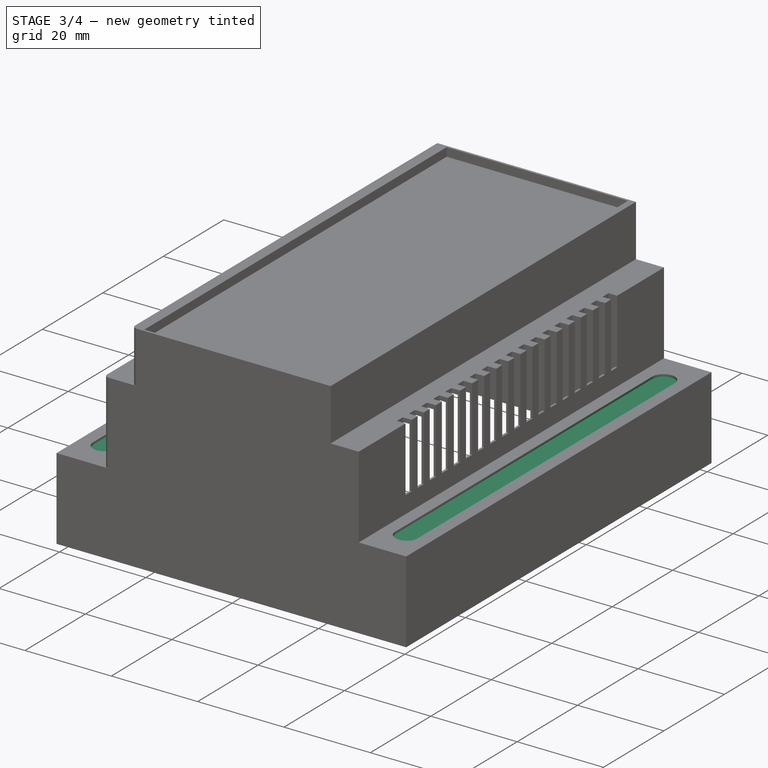
[diagram: stage 3 of 4 — iso view after this stage's code; geometry added in this stage tinted green]
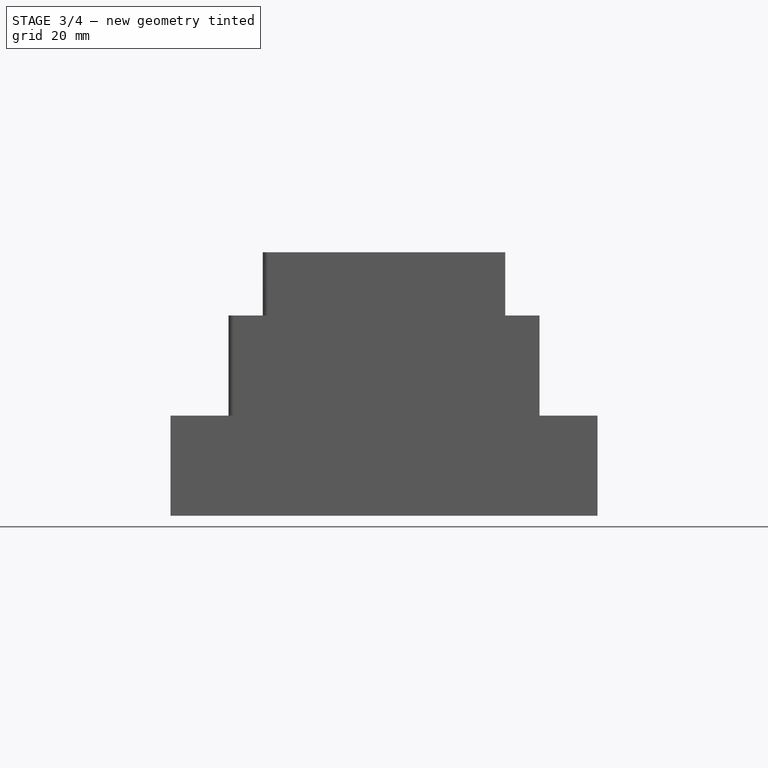
[diagram: stage 3 of 4 — front view after this stage's code; geometry added in this stage tinted green]
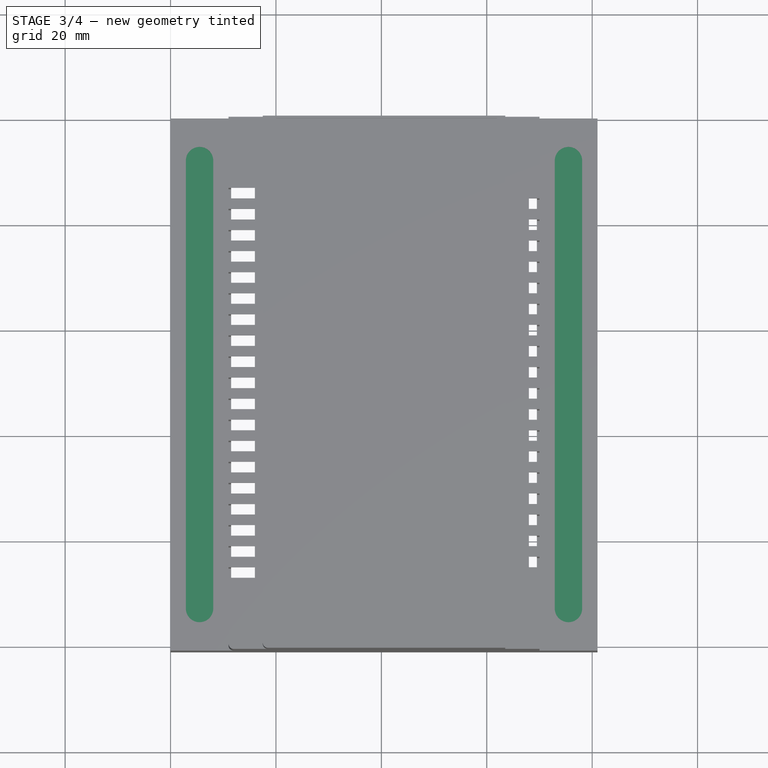
[diagram: stage 3 of 4 — top view after this stage's code; geometry added in this stage tinted green]
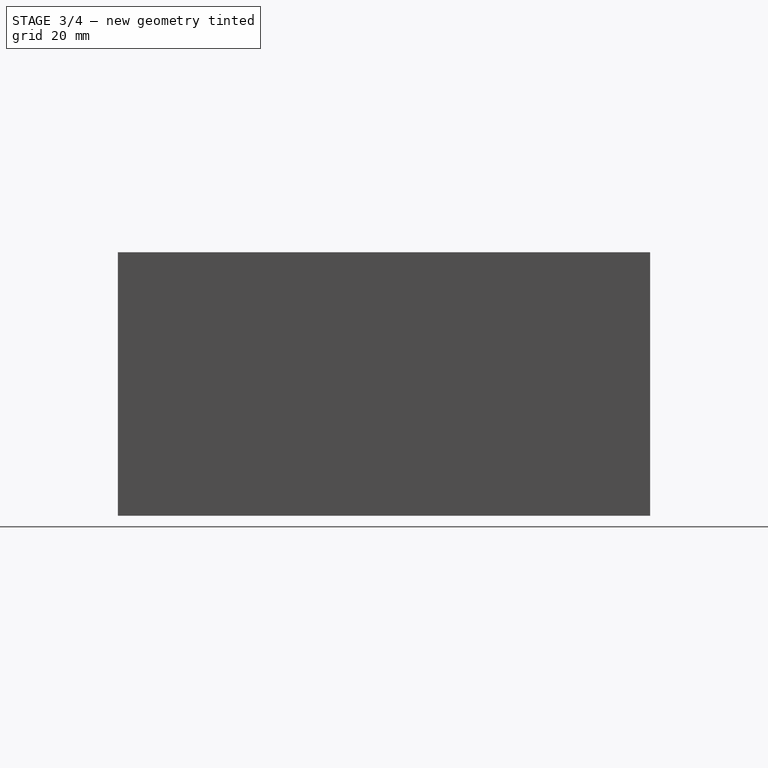
[diagram: stage 3 of 4 — right view after this stage's code; geometry added in this stage tinted green]
FEATURE [Sketcher::SketchObject] Sketch008
  ArcFitTolerance = 1e-06
  AttachmentSupport = -> [Pocket005]
  ExternalGeometry = -> [Pocket005]
  FullyConstrained = true
  MakeInternals = false
  MapMode = 5
  Placement = pos=(0,8.4e-15,19) rot=(0,0,1;3.14159rad)
  sketch-geometry (8):
    g0: LineSegment StartX=-78.1 StartY=93 StartZ=0 EndX=-78.1 EndY=8 EndZ=0
    g1: LineSegment StartX=-72.9 StartY=93 StartZ=0 EndX=-72.9 EndY=8 EndZ=0
    g2: ArcOfCircle CenterX=-75.5 CenterY=93 CenterZ=0 NormalX=0 NormalY=0 NormalZ=1 AngleXU=0 Radius=2.6 StartAngle=-1.8e-15 EndAngle=3.14159
    g3: ArcOfCircle CenterX=-75.5 CenterY=8 CenterZ=0 NormalX=0 NormalY=0 NormalZ=1 AngleXU=0 Radius=2.6 StartAngle=3.14159 EndAngle=6.28319
    g4: LineSegment StartX=-8.1 StartY=93 StartZ=0 EndX=-8.1 EndY=8 EndZ=0
    g5: LineSegment StartX=-2.9 StartY=93 StartZ=0 EndX=-2.9 EndY=8 EndZ=0
    g6: ArcOfCircle CenterX=-5.5 CenterY=93 CenterZ=0 NormalX=0 NormalY=0 NormalZ=1 AngleXU=0 Radius=2.6 StartAngle=-3.64e-14 EndAngle=3.14159
    g7: ArcOfCircle CenterX=-5.5 CenterY=8 CenterZ=0 NormalX=0 NormalY=0 NormalZ=1 AngleXU=0 Radius=2.6 StartAngle=3.14159 EndAngle=6.28319
  constraints (24):
    c: Distance(g2,g-3) = 5.5
    c: Distance(g3,g-3) = 5.5
    c: DistanceY(g3,g2) = 85
    c: Distance(g3,g-1) = 8
    c: Vertical(g0)
    c: Tangent(g2,g0) = -1.5708
    c: Coincident(g2,g1)
    c: Diameter(g3) = 5.2
    c: Coincident(g3,g0)
    c: Tangent(g3,g1) = 1.5708
    c: DistanceY(g1,g1) = 85
    c: Equal(g0,g1)
    c: DistanceX(g6,g-1) = 5.5
    c: Distance(g7,g-2) = 5.5
    c: Distance(g7,g-1) = 8
    c: DistanceY(g7,g6) = 85
    c: Vertical(g4)
    c: Coincident(g6,g4)
    c: Coincident(g6,g5)
    c: Diameter(g7) = 5.2
    c: Tangent(g7,g4) = -1.5708
    c: Tangent(g7,g5) = 1.5708
    c: DistanceY(g5,g5) = 85
    c: Equal(g4,g5)
FEATURE [PartDesign::Pocket] Pocket006
  BaseFeature = -> Pocket005
  Direction = (0,0,-1)
  Length = 0.5
  Length2 = 5
  Placement = pos=(0,0,0) rot=(1,0,0;1.5708rad)
  Profile = -> Sketch008
  ReferenceAxis = -> Sketch008 [N_Axis]
  Refine = true
  Suppressed = false
  Type = 0
FEATURE [PartDesign::Fillet] Fillet
  Base = -> Pocket006 [Edge30]
  BaseFeature = -> Pocket006
  Placement = pos=(0,0,0) rot=(1,0,0;1.5708rad)
  Radius = 1
  Refine = true
  SupportTransform = false
  Suppressed = false
  UseAllEdges = false
FEATURE [PartDesign::Fillet] Fillet001
  Base = -> Fillet [Edge8]
  BaseFeature = -> Fillet
  Placement = pos=(0,0,0) rot=(1,0,0;1.5708rad)
  Radius = 1
  Refine = true
  SupportTransform = false
  Suppressed = false
  UseAllEdges = false
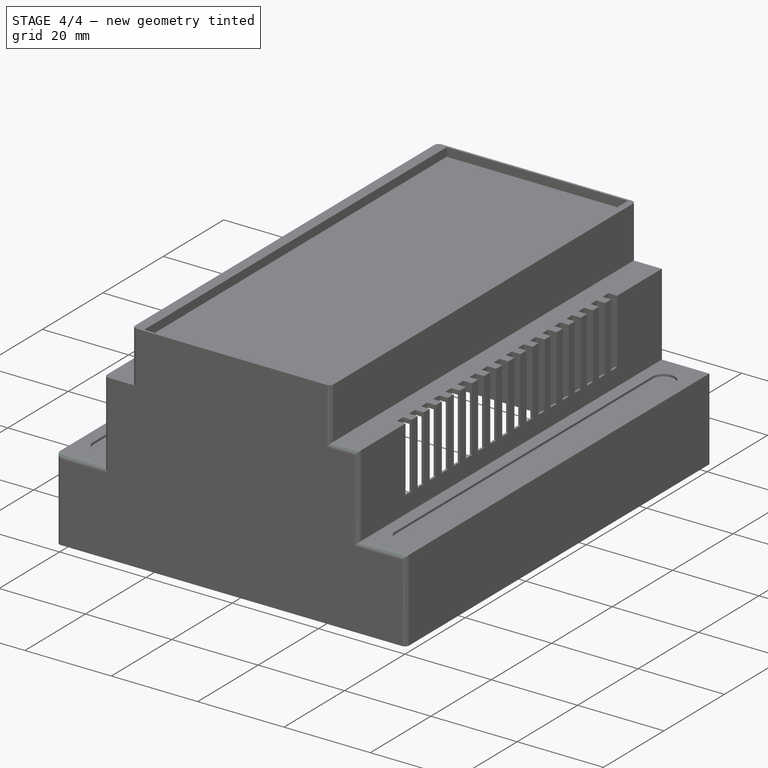
[diagram: stage 4 of 4 — iso view after this stage's code; geometry added in this stage tinted green]
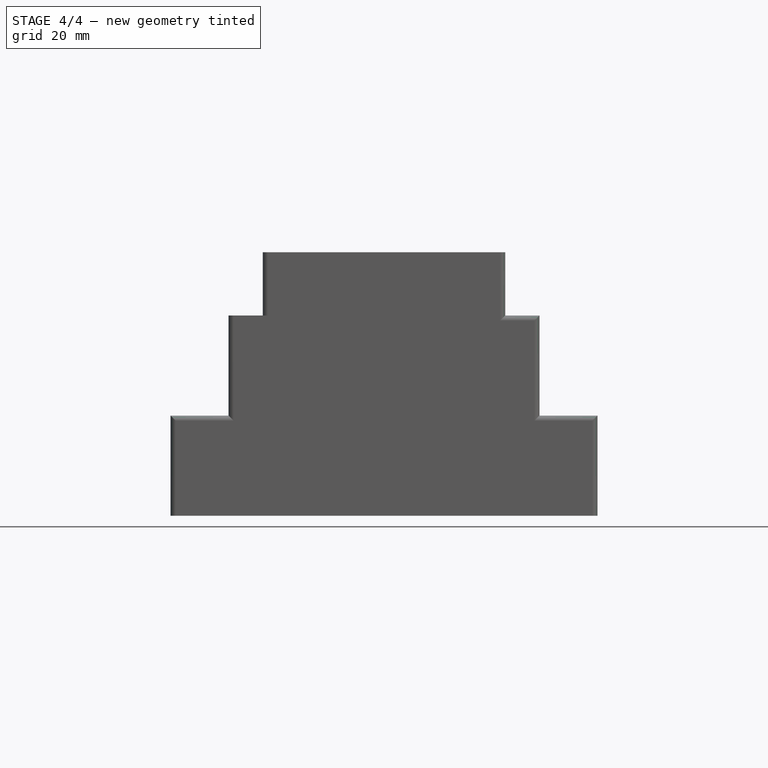
[diagram: stage 4 of 4 — front view after this stage's code; geometry added in this stage tinted green]
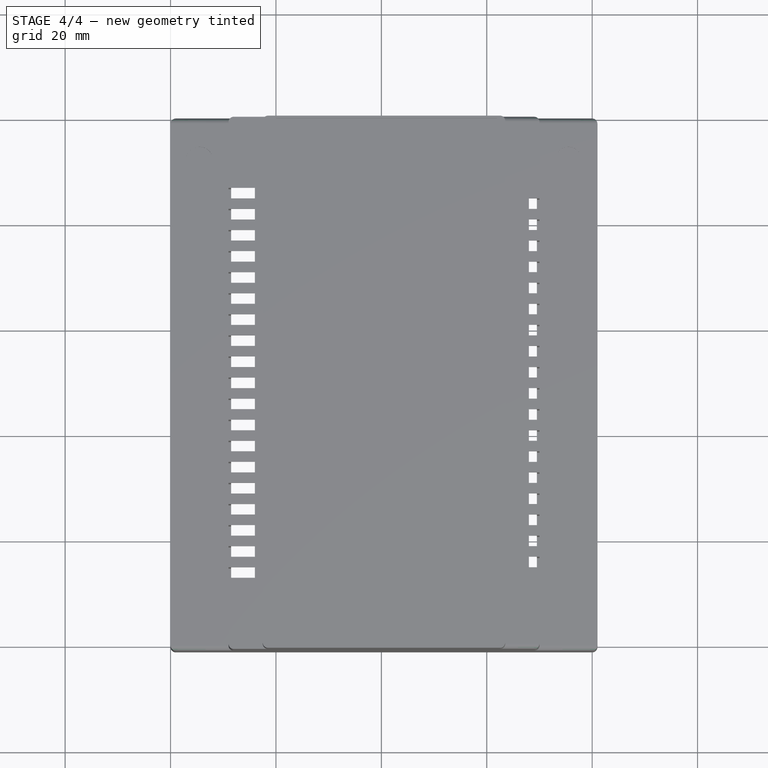
[diagram: stage 4 of 4 — top view after this stage's code; geometry added in this stage tinted green]
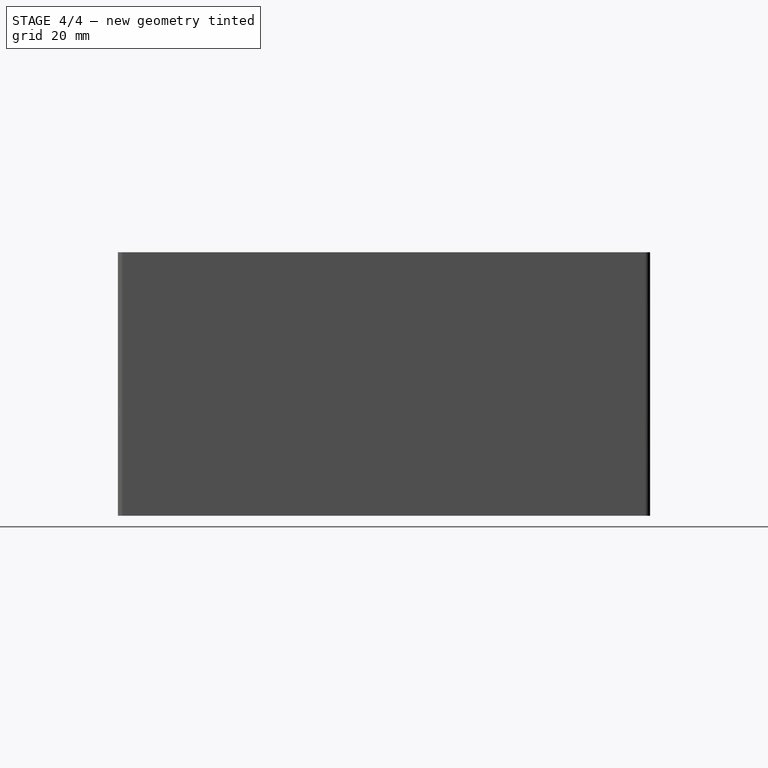
[diagram: stage 4 of 4 — right view after this stage's code; geometry added in this stage tinted green]
FEATURE [PartDesign::Fillet] Fillet002
  Base = -> Fillet001 [Edge8,Edge6]
  BaseFeature = -> Fillet001
  Placement = pos=(0,0,0) rot=(1,0,0;1.5708rad)
  Radius = 1
  Refine = true
  SupportTransform = false
  Suppressed = false
  UseAllEdges = false
FEATURE [PartDesign::Fillet] Fillet003
  Base = -> Fillet002 [Edge254,Edge257,Edge258,Edge256]
  BaseFeature = -> Fillet002
  Placement = pos=(0,0,0) rot=(1,0,0;1.5708rad)
  Radius = 1
  Refine = true
  SupportTransform = false
  Suppressed = false
  UseAllEdges = false
FEATURE [PartDesign::Fillet] Fillet004
  Base = -> Fillet003 [Edge35,Edge33,Edge32,Edge30,Edge29]
  BaseFeature = -> Fillet003
  Placement = pos=(0,0,0) rot=(1,0,0;1.5708rad)
  Radius = 1
  Refine = true
  SupportTransform = false
  Suppressed = false
  UseAllEdges = false
FEATURE [PartDesign::Fillet] Fillet005
  Base = -> Fillet004 [Edge28,Edge40,Edge41,Edge39,Edge38]
  BaseFeature = -> Fillet004
  Placement = pos=(0,0,0) rot=(1,0,0;1.5708rad)
  Radius = 1
  Refine = true
  SupportTransform = false
  Suppressed = false
  UseAllEdges = false
FEATURE [PartDesign::Body] Body
  AllowCompound = false
  Group = -> [Sketch,Pad,Sketch001,Pocket,Sketch002,Pocket001,Sketch003,Pocket002,Sketch004,Pocket003,Sketch005,Sketch006,Pocket004,Sketch007,Pocket005,Sketch008,Pocket006,Fillet,Fillet001,Fillet002,Fillet003,Fillet004,Fillet005]
  Origin = -> Origin
  Tip = -> Fillet005
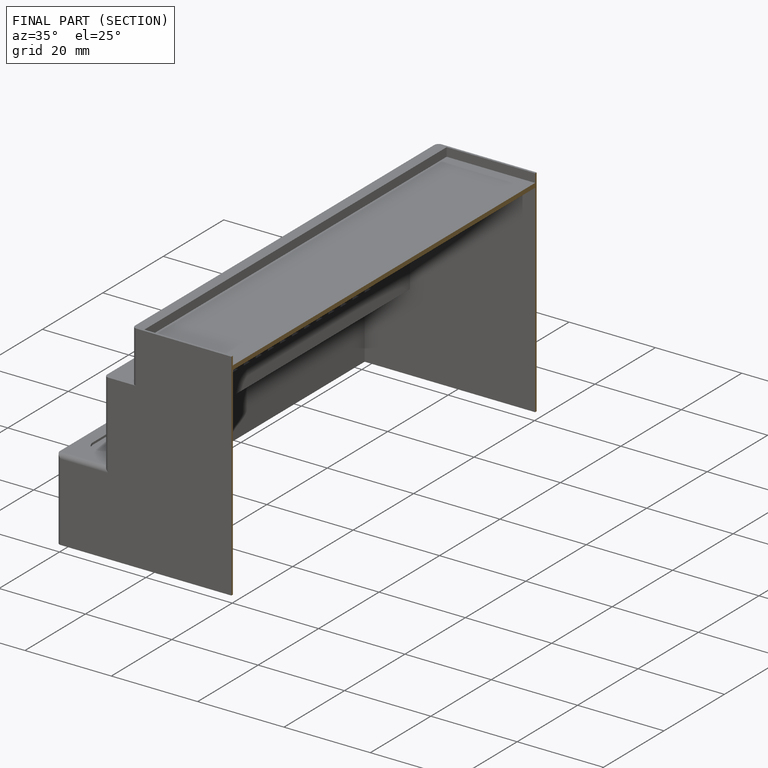
[diagram: finished part — half-section view (interior)]
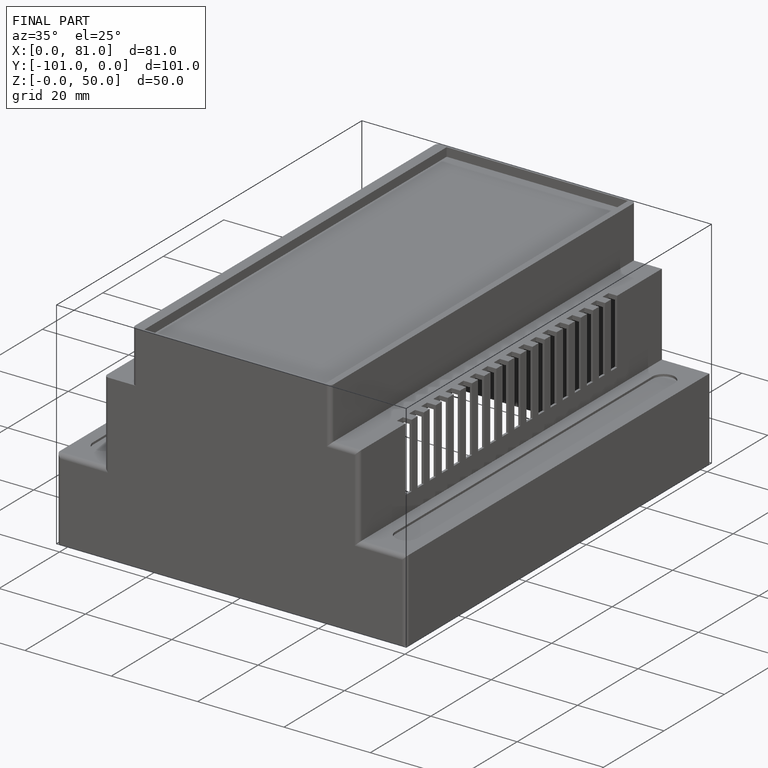
[diagram: finished part — iso view with bounding-box wireframe]
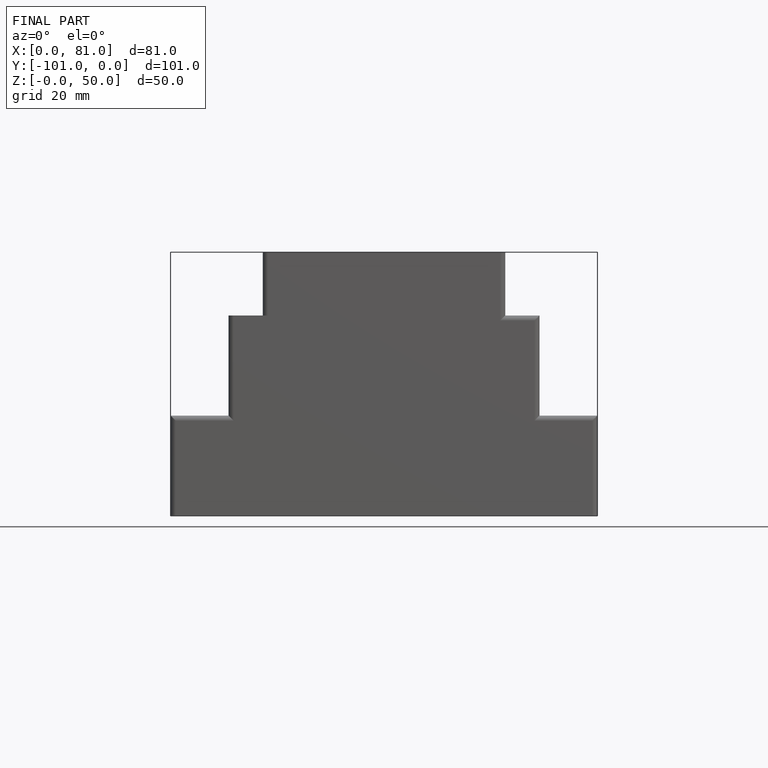
[diagram: finished part — front view with bounding-box wireframe]
